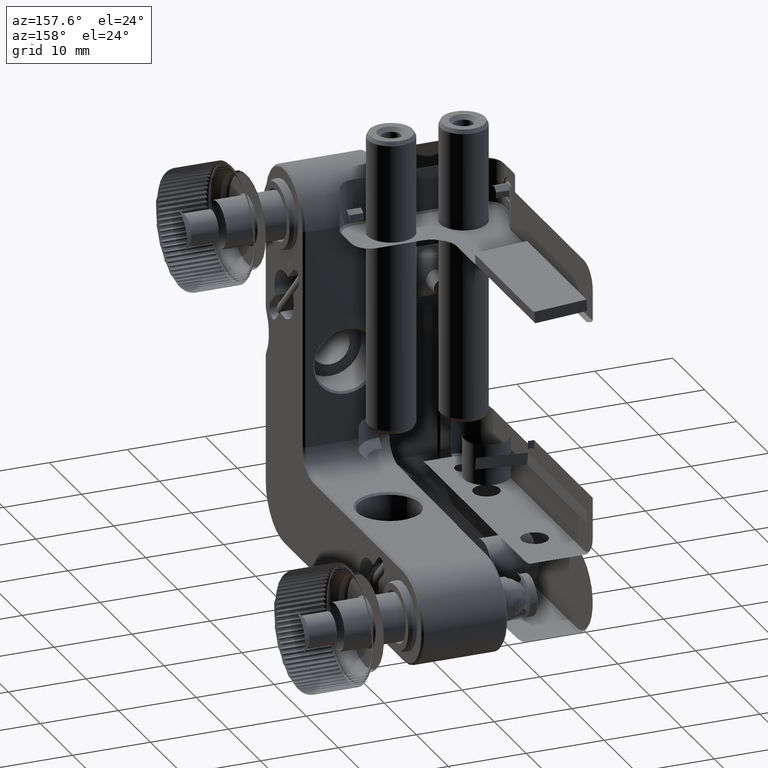
[diagram: clean part render]
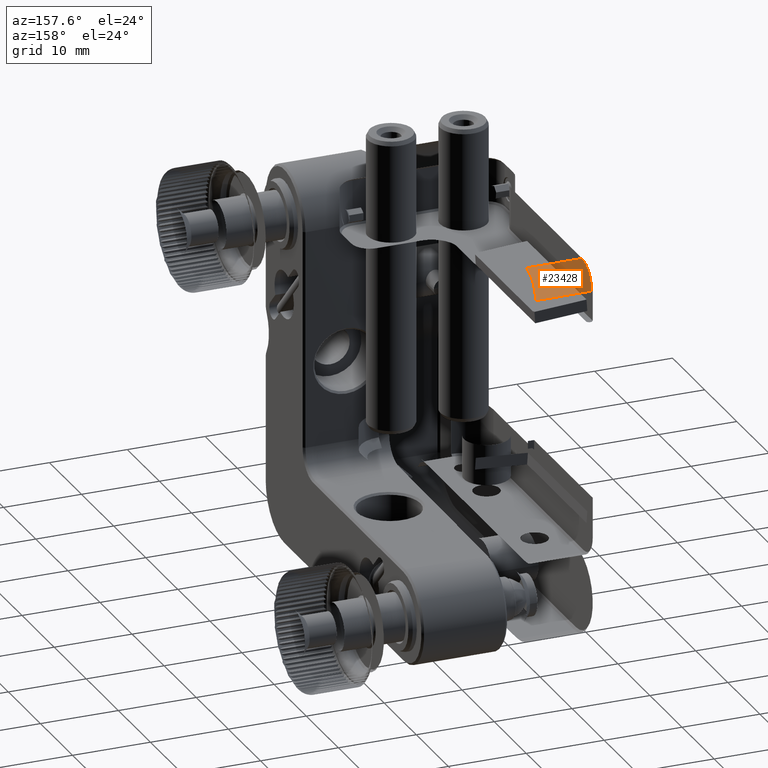
[diagram: same view with one face highlighted and labeled with its STEP entity id]
A machine part, auxiliary view. The second image highlights one B-rep face of the part: STEP entity #23428.
In plain terms, the highlighted cylindrical surface (edge-blend (fillet) strip) has radius 3 mm, axis along (1, -0, 0).
Its self-contained STEP definition (entity closure, byte-faithful):
#716 = DIRECTION ( 'NONE',  ( 1.000000000000000000, -2.775557561562890562E-15, 2.155814870132796233E-16 ) ) ;
#1139 = CARTESIAN_POINT ( 'NONE',  ( -18.99174326827285597, 11.06281814547453735, 71.20000000000003126 ) ) ;
#2460 = CARTESIAN_POINT ( 'NONE',  ( -26.19174326823955212, 11.06281814545047659, 71.20000000000003126 ) ) ;
#2983 = CYLINDRICAL_SURFACE ( 'NONE', #18536, 2.999999999999999112 ) ;
#5920 = ORIENTED_EDGE ( 'NONE', *, *, #28943, .F. ) ;
#6548 = VECTOR ( 'NONE', #16162, 1000.000000000000000 ) ;
#7217 = CARTESIAN_POINT ( 'NONE',  ( -18.99174326825865577, 8.062818145450467711, 74.19999999999055262 ) ) ;
#8313 = ORIENTED_EDGE ( 'NONE', *, *, #31229, .F. ) ;
#9487 = VERTEX_POINT ( 'NONE', #1139 ) ;
#11065 = CIRCLE ( 'NONE', #14198, 2.999999999999999112 ) ;
#11767 = LINE ( 'NONE', #18446, #6548 ) ;
#12669 = ORIENTED_EDGE ( 'NONE', *, *, #23351, .F. ) ;
#12883 = CARTESIAN_POINT ( 'NONE',  ( -26.44174326823955212, 8.062818145450476592, 71.20000000000003126 ) ) ;
#13648 = DIRECTION ( 'NONE',  ( 2.312964634635743450E-15, 1.000000000000000000, 0.000000000000000000 ) ) ;
#13918 = VERTEX_POINT ( 'NONE', #7217 ) ;
#14198 = AXIS2_PLACEMENT_3D ( 'NONE', #28922, #16555, #26466 ) ;
#15809 = DIRECTION ( 'NONE',  ( 2.312964634635743450E-15, 1.000000000000000000, 0.000000000000000000 ) ) ;
#15896 = VERTEX_POINT ( 'NONE', #21606 ) ;
#16162 = DIRECTION ( 'NONE',  ( 1.000000000000000000, -0.000000000000000000, 2.155814870132792782E-16 ) ) ;
#16555 = DIRECTION ( 'NONE',  ( -1.000000000000000000, 2.775557561562890562E-15, -2.155814870132796233E-16 ) ) ;
#17642 = VERTEX_POINT ( 'NONE', #2460 ) ;
#17921 = CARTESIAN_POINT ( 'NONE',  ( -26.19174326823955923, 8.062818145450476592, 71.20000000000003126 ) ) ;
#18446 = CARTESIAN_POINT ( 'NONE',  ( -18.69174326823959476, 8.062818145450476592, 74.20000000000003126 ) ) ;
#18536 = AXIS2_PLACEMENT_3D ( 'NONE', #12883, #716, #13648 ) ;
#19985 = CIRCLE ( 'NONE', #25178, 2.999999999999999112 ) ;
#21450 = ORIENTED_EDGE ( 'NONE', *, *, #24185, .F. ) ;
#21606 = CARTESIAN_POINT ( 'NONE',  ( -26.19174326823959476, 8.062818145450476592, 74.20000000000003126 ) ) ;
#23304 = LINE ( 'NONE', #26226, #29967 ) ;
#23351 = EDGE_CURVE ( 'NONE', #9487, #17642, #23304, .T. ) ;
#23428 = ADVANCED_FACE ( 'NONE', ( #27496 ), #2983, .F. ) ;
#24185 = EDGE_CURVE ( 'NONE', #15896, #13918, #11767, .T. ) ;
#25178 = AXIS2_PLACEMENT_3D ( 'NONE', #17921, #30289, #15809 ) ;
#26226 = CARTESIAN_POINT ( 'NONE',  ( -26.44174326823954502, 11.06281814545047659, 71.20000000000003126 ) ) ;
#26466 = DIRECTION ( 'NONE',  ( 2.312964634635743450E-15, 1.000000000000000000, 0.000000000000000000 ) ) ;
#27496 = FACE_OUTER_BOUND ( 'NONE', #29000, .T. ) ;
#28922 = CARTESIAN_POINT ( 'NONE',  ( -18.99174326823954218, 8.062818145450457052, 71.20000000000003126 ) ) ;
#28943 = EDGE_CURVE ( 'NONE', #13918, #9487, #11065, .T. ) ;
#29000 = EDGE_LOOP ( 'NONE', ( #12669, #5920, #21450, #8313 ) ) ;
#29967 = VECTOR ( 'NONE', #31278, 1000.000000000000000 ) ;
#30289 = DIRECTION ( 'NONE',  ( 1.000000000000000000, -2.775557561562890562E-15, 2.155814870132796233E-16 ) ) ;
#31229 = EDGE_CURVE ( 'NONE', #17642, #15896, #19985, .T. ) ;
#31278 = DIRECTION ( 'NONE',  ( -1.000000000000000000, 2.775557561562890562E-15, -2.155814870132796233E-16 ) ) ;